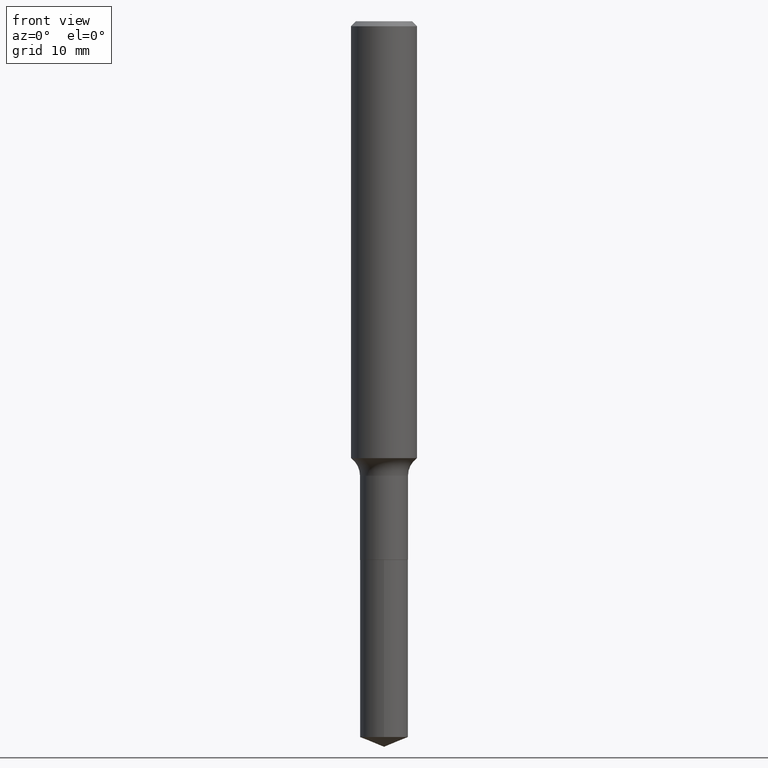
[diagram: clean part render]
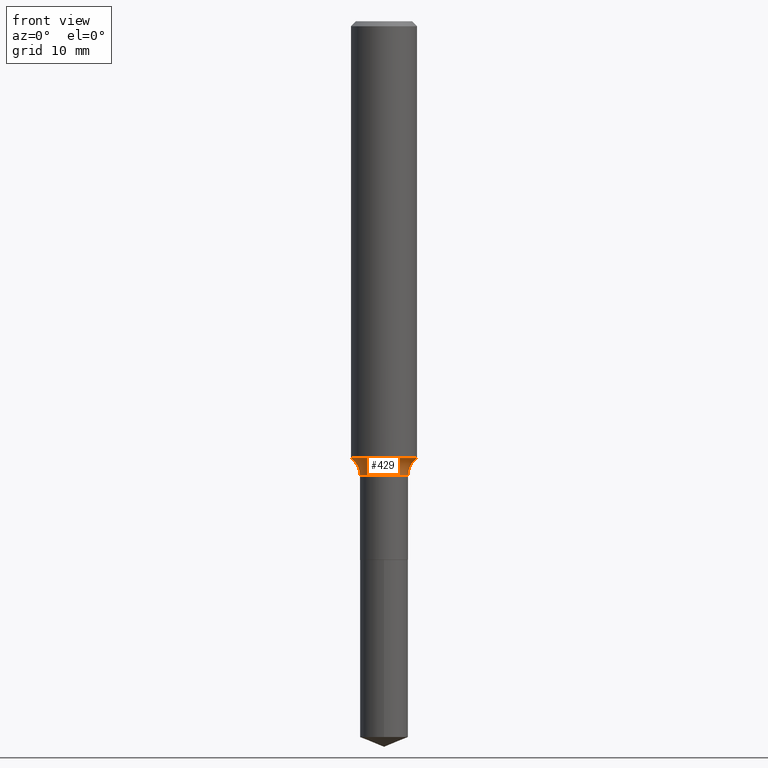
[diagram: same view with one face highlighted and labeled with its STEP entity id]
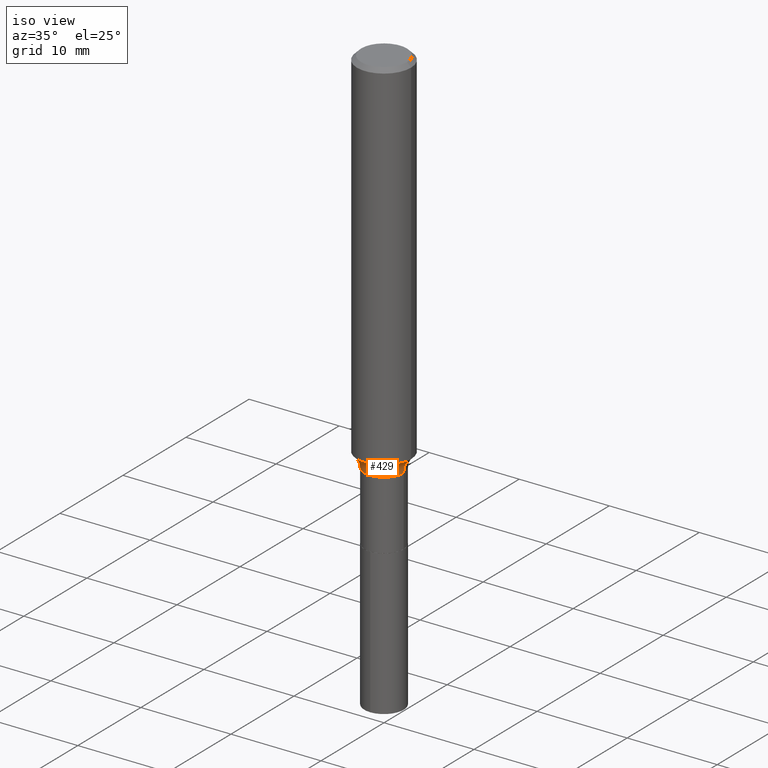
[diagram: same view with one face highlighted and labeled with its STEP entity id]
A machine part, front view. The second image highlights one B-rep face of the part: STEP entity #429.
A second angle (iso view) of the same face is appended — the face is thin or edge-on in the first view.
In plain terms, the highlighted toroidal blend (fillet) surface has major radius 4.1643 mm and minor (blend) radius 1.9812 mm.
Its self-contained STEP definition (entity closure, byte-faithful):
#12 = EDGE_CURVE ( 'NONE', #291, #56, #128, .T. ) ;
#19 = EDGE_CURVE ( 'NONE', #136, #291, #482, .T. ) ;
#50 = ORIENTED_EDGE ( 'NONE', *, *, #163, .T. ) ;
#56 = VERTEX_POINT ( 'NONE', #225 ) ;
#61 = DIRECTION ( 'NONE',  ( 1.000000000000000000, -6.982962677686268288E-15, 0.000000000000000000 ) ) ;
#69 = CARTESIAN_POINT ( 'NONE',  ( 0.1639499999999999291, -6.827940906241650604E-15, -1.627699999999999703 ) ) ;
#80 = DIRECTION ( 'NONE',  ( 7.105427357601001859E-15, 1.000000000000000000, -3.491481338843145583E-15 ) ) ;
#105 = FACE_OUTER_BOUND ( 'NONE', #188, .T. ) ;
#114 = DIRECTION ( 'NONE',  ( -2.445468806185136597E-29, 3.491481338843145583E-15, 1.000000000000000000 ) ) ;
#124 = CARTESIAN_POINT ( 'NONE',  ( 0.1181000000000002048, -6.287454960939812530E-15, -1.564598672755638020 ) ) ;
#128 = CIRCLE ( 'NONE', #307, 0.07800000000000002764 ) ;
#136 = VERTEX_POINT ( 'NONE', #234 ) ;
#139 = AXIS2_PLACEMENT_3D ( 'NONE', #274, #80, #239 ) ;
#154 = DIRECTION ( 'NONE',  ( 1.000000000000000000, -6.982962677686264344E-15, 0.000000000000000000 ) ) ;
#162 = DIRECTION ( 'NONE',  ( -2.445468806185136597E-29, 3.491481338843145583E-15, 1.000000000000000000 ) ) ;
#163 = EDGE_CURVE ( 'NONE', #322, #56, #208, .T. ) ;
#188 = EDGE_LOOP ( 'NONE', ( #401, #359, #50, #228 ) ) ;
#198 = CARTESIAN_POINT ( 'NONE',  ( 3.980489575827546304E-29, -5.683084175234986754E-15, -1.627699999999999703 ) ) ;
#208 = CIRCLE ( 'NONE', #467, 0.08594999999999995699 ) ;
#209 = EDGE_CURVE ( 'NONE', #136, #322, #362, .T. ) ;
#225 = CARTESIAN_POINT ( 'NONE',  ( 0.08594999999999995699, -6.283269817382120980E-15, -1.627699999999999703 ) ) ;
#228 = ORIENTED_EDGE ( 'NONE', *, *, #12, .F. ) ;
#234 = CARTESIAN_POINT ( 'NONE',  ( -0.1181000000000002048, -4.623616097772383704E-15, -1.564598672755638020 ) ) ;
#239 = DIRECTION ( 'NONE',  ( -1.000000000000000000, 7.105427357601001859E-15, 0.000000000000000000 ) ) ;
#257 = TOROIDAL_SURFACE ( 'NONE', #318, 0.1639499999999999291, 0.07800000000000002764 ) ;
#258 = DIRECTION ( 'NONE',  ( -6.982962677686266711E-15, -1.000000000000000000, 3.491481338843145583E-15 ) ) ;
#274 = CARTESIAN_POINT ( 'NONE',  ( -0.1639499999999999291, -4.518149359956303792E-15, -1.627699999999999703 ) ) ;
#291 = VERTEX_POINT ( 'NONE', #124 ) ;
#302 = DIRECTION ( 'NONE',  ( 1.000000000000000000, -6.982962677686264344E-15, 4.883557194083111780E-29 ) ) ;
#307 = AXIS2_PLACEMENT_3D ( 'NONE', #69, #258, #61 ) ;
#318 = AXIS2_PLACEMENT_3D ( 'NONE', #449, #114, #302 ) ;
#322 = VERTEX_POINT ( 'NONE', #453 ) ;
#329 = DIRECTION ( 'NONE',  ( 1.000000000000000000, -6.982962677686270655E-15, 0.000000000000000000 ) ) ;
#335 = DIRECTION ( 'NONE',  ( -2.445468806185136597E-29, 3.491481338843145583E-15, 1.000000000000000000 ) ) ;
#359 = ORIENTED_EDGE ( 'NONE', *, *, #209, .T. ) ;
#362 = CIRCLE ( 'NONE', #139, 0.07800000000000002764 ) ;
#401 = ORIENTED_EDGE ( 'NONE', *, *, #19, .F. ) ;
#403 = AXIS2_PLACEMENT_3D ( 'NONE', #487, #335, #329 ) ;
#429 = ADVANCED_FACE ( 'NONE', ( #105 ), #257, .F. ) ;
#449 = CARTESIAN_POINT ( 'NONE',  ( 3.980489575827546304E-29, -5.683084175234986754E-15, -1.627699999999999703 ) ) ;
#453 = CARTESIAN_POINT ( 'NONE',  ( -0.08594999999999995699, -5.597666061278133758E-15, -1.627699999999999703 ) ) ;
#467 = AXIS2_PLACEMENT_3D ( 'NONE', #198, #162, #154 ) ;
#482 = CIRCLE ( 'NONE', #403, 0.1181000000000001632 ) ;
#487 = CARTESIAN_POINT ( 'NONE',  ( 3.826177248422579453E-29, -5.462767068705062690E-15, -1.564598672755638020 ) ) ;